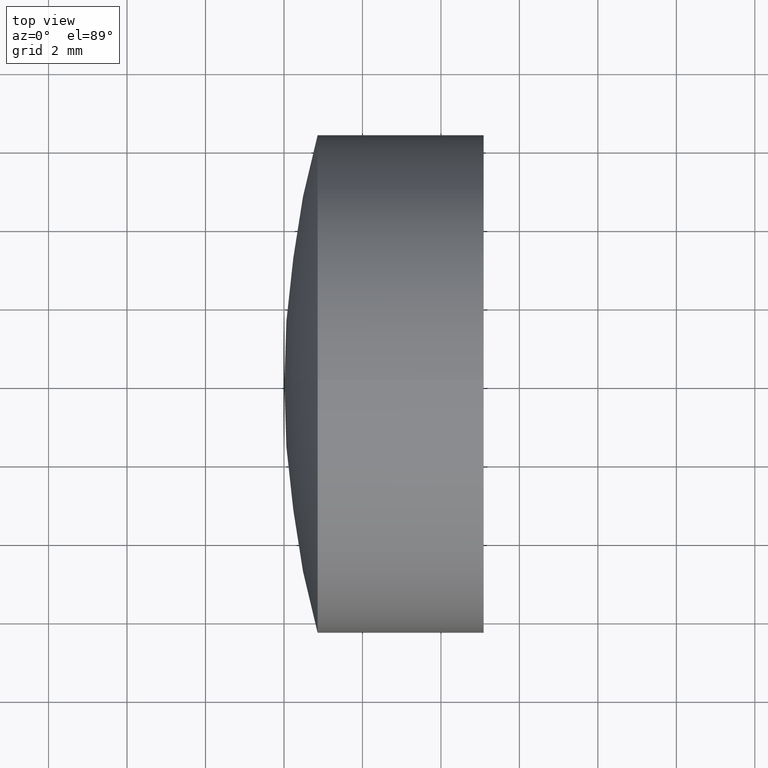
[diagram: clean part render]
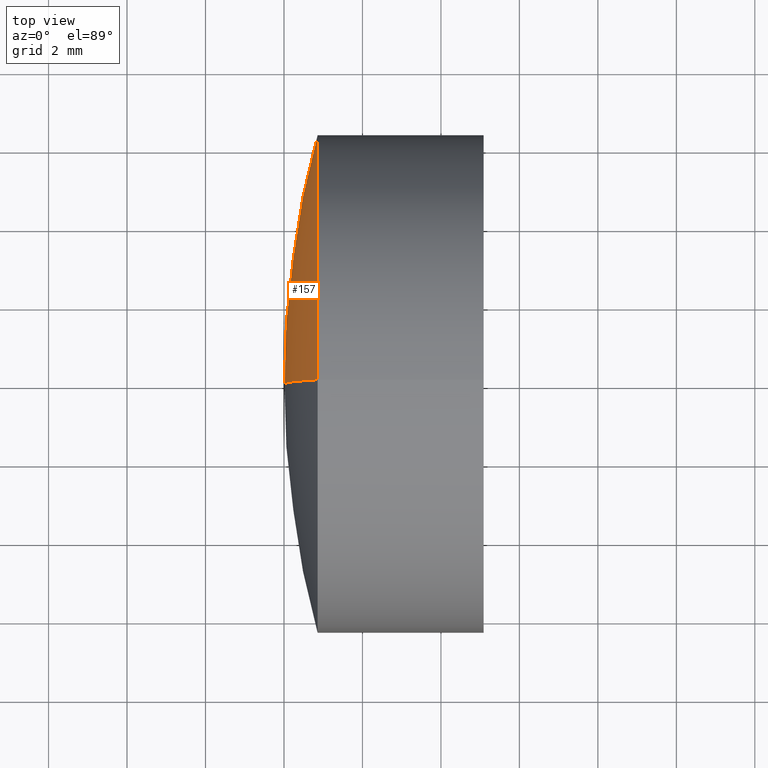
[diagram: same view with one face highlighted and labeled with its STEP entity id]
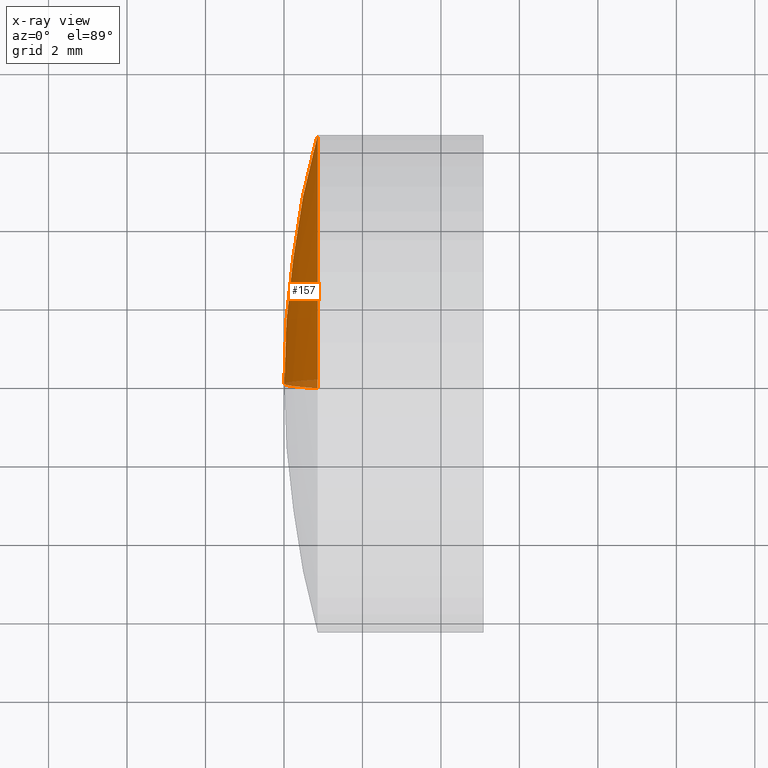
[diagram: x-ray of the same camera — body ghosted, the highlighted face saturated]
A machine part, top view. The second image highlights one B-rep face of the part: STEP entity #157.
The next image is the same camera in x-ray: the body ghosted, the highlighted face saturated — about 3% of this face is hidden behind the body in this view.
In plain terms, the highlighted spherical surface has radius 24.2 mm.
Its self-contained STEP definition (entity closure, byte-faithful):
#8 = DIRECTION ( 'NONE',  ( 0.0000000000000000000, 1.000000000000000000, 0.0000000000000000000 ) ) ;
#25 = ORIENTED_EDGE ( 'NONE', *, *, #124, .F. ) ;
#42 = DIRECTION ( 'NONE',  ( -1.000000000000000000, -0.0000000000000000000, -0.0000000000000000000 ) ) ;
#44 = DIRECTION ( 'NONE',  ( 0.0000000000000000000, 0.0000000000000000000, -1.000000000000000000 ) ) ;
#70 = CARTESIAN_POINT ( 'NONE',  ( 308.2089566504702100, 0.0000000000000000000, -3.485532528785909500E-015 ) ) ;
#72 = AXIS2_PLACEMENT_3D ( 'NONE', #91, #319, #174 ) ;
#91 = CARTESIAN_POINT ( 'NONE',  ( 308.2089566504702100, 0.0000000000000000000, -3.485532528785909500E-015 ) ) ;
#99 = VERTEX_POINT ( 'NONE', #105 ) ;
#105 = CARTESIAN_POINT ( 'NONE',  ( 284.8569224778333400, 0.0000000000000000000, 6.350000000000001400 ) ) ;
#108 = CIRCLE ( 'NONE', #145, 6.349999999999996100 ) ;
#122 = VERTEX_POINT ( 'NONE', #271 ) ;
#124 = EDGE_CURVE ( 'NONE', #99, #201, #305, .T. ) ;
#125 = SPHERICAL_SURFACE ( 'NONE', #254, 24.20000000000000600 ) ;
#145 = AXIS2_PLACEMENT_3D ( 'NONE', #244, #42, #220 ) ;
#157 = ADVANCED_FACE ( 'NONE', ( #181 ), #125, .T. ) ;
#164 = EDGE_CURVE ( 'NONE', #99, #122, #108, .T. ) ;
#174 = DIRECTION ( 'NONE',  ( 0.0000000000000000000, -1.224646799147353200E-016, 1.000000000000000000 ) ) ;
#178 = CARTESIAN_POINT ( 'NONE',  ( 308.2089566504702100, 0.0000000000000000000, -3.485532528785909500E-015 ) ) ;
#179 = ORIENTED_EDGE ( 'NONE', *, *, #164, .T. ) ;
#181 = FACE_OUTER_BOUND ( 'NONE', #241, .T. ) ;
#190 = ORIENTED_EDGE ( 'NONE', *, *, #200, .T. ) ;
#197 = DIRECTION ( 'NONE',  ( 0.0000000000000000000, -1.000000000000000000, 0.0000000000000000000 ) ) ;
#200 = EDGE_CURVE ( 'NONE', #122, #201, #235, .T. ) ;
#201 = VERTEX_POINT ( 'NONE', #296 ) ;
#209 = AXIS2_PLACEMENT_3D ( 'NONE', #70, #197, #44 ) ;
#220 = DIRECTION ( 'NONE',  ( 0.0000000000000000000, 0.0000000000000000000, 1.000000000000000000 ) ) ;
#235 = CIRCLE ( 'NONE', #72, 24.20000000000000600 ) ;
#241 = EDGE_LOOP ( 'NONE', ( #179, #190, #25 ) ) ;
#244 = CARTESIAN_POINT ( 'NONE',  ( 284.8569224778333400, 0.0000000000000000000, 0.0000000000000000000 ) ) ;
#254 = AXIS2_PLACEMENT_3D ( 'NONE', #178, #8, #322 ) ;
#271 = CARTESIAN_POINT ( 'NONE',  ( 284.8569224778333400, 7.776507174585695100E-016, -6.350000000000005000 ) ) ;
#296 = CARTESIAN_POINT ( 'NONE',  ( 284.0089566504702200, 0.0000000000000000000, -2.003709901817612000E-015 ) ) ;
#305 = CIRCLE ( 'NONE', #209, 24.20000000000000600 ) ;
#319 = DIRECTION ( 'NONE',  ( -0.0000000000000000000, 1.000000000000000000, 1.224646799147353200E-016 ) ) ;
#322 = DIRECTION ( 'NONE',  ( 0.0000000000000000000, 0.0000000000000000000, 1.000000000000000000 ) ) ;